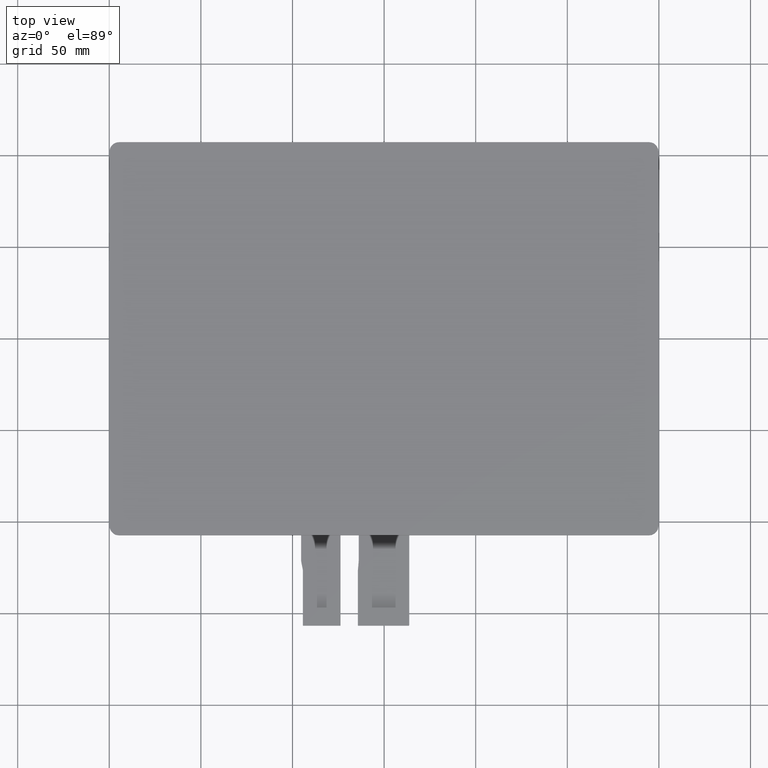
[diagram: clean part render]
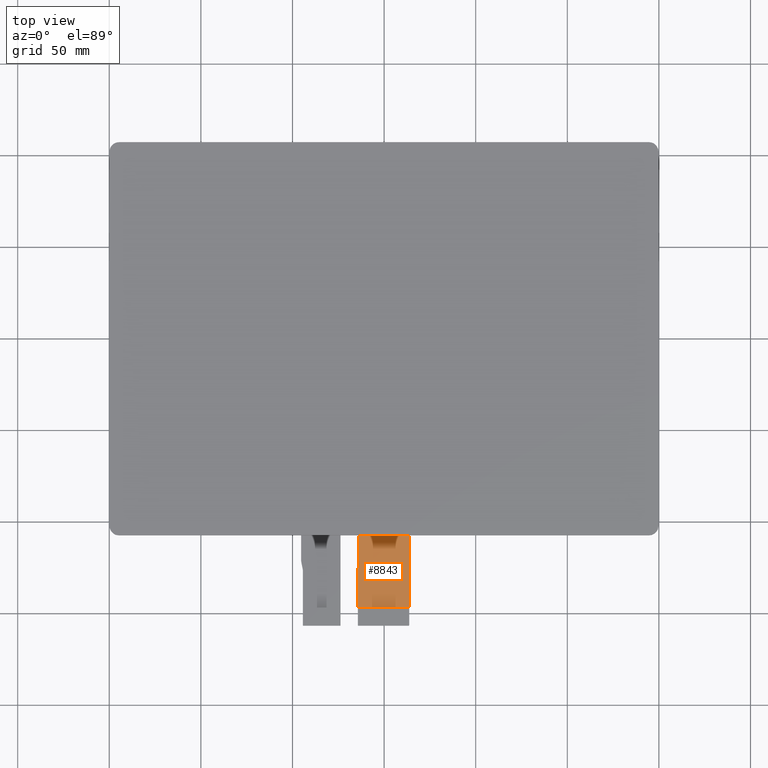
[diagram: same view with one face highlighted and labeled with its STEP entity id]
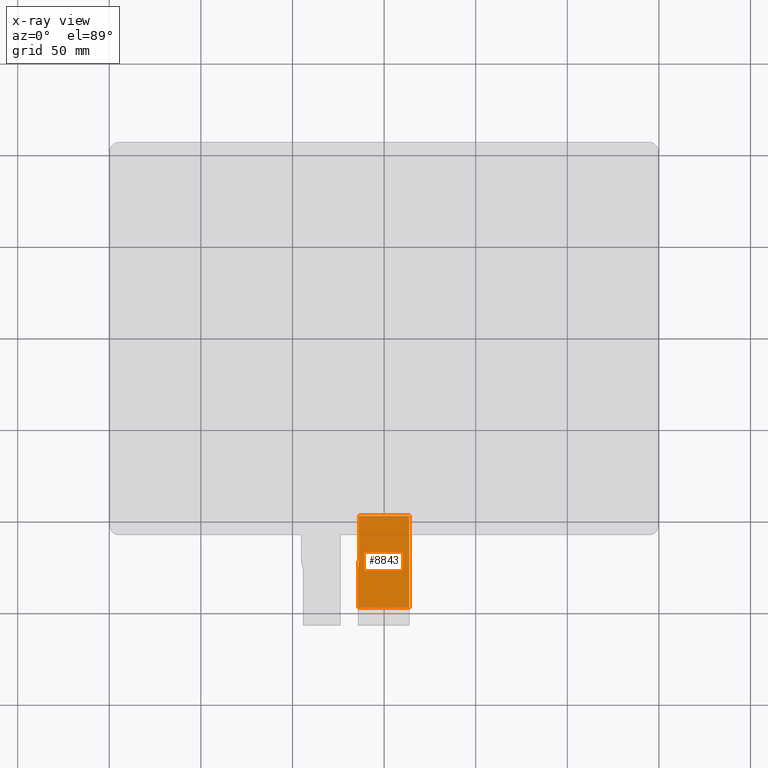
[diagram: x-ray of the same camera — body ghosted, the highlighted face saturated]
A machine part, top view. The second image highlights one B-rep face of the part: STEP entity #8843.
The next image is the same camera in x-ray: the body ghosted, the highlighted face saturated — about 0% of this face is hidden behind the body in this view.
In plain terms, the highlighted planar face has unit normal (0, 0, 1).
Its self-contained STEP definition (entity closure, byte-faithful):
#476=FACE_OUTER_BOUND('',#903,.T.);
#903=EDGE_LOOP('',(#7933,#7934,#7935,#7936,#7937,#7938));
#962=LINE('',#11542,#2207);
#2128=LINE('',#13875,#3373);
#2132=LINE('',#13882,#3377);
#2138=LINE('',#13896,#3383);
#2142=LINE('',#13903,#3387);
#2144=LINE('',#13906,#3389);
#2207=VECTOR('',#9411,10.);
#3373=VECTOR('',#11351,10.);
#3377=VECTOR('',#11359,10.);
#3383=VECTOR('',#11373,10.);
#3387=VECTOR('',#11379,10.);
#3389=VECTOR('',#11383,10.);
#3449=VERTEX_POINT('',#11539);
#3450=VERTEX_POINT('',#11541);
#4229=VERTEX_POINT('',#13872);
#4230=VERTEX_POINT('',#13874);
#4234=VERTEX_POINT('',#13894);
#4235=VERTEX_POINT('',#13895);
#4300=EDGE_CURVE('',#3450,#3449,#962,.T.);
#5466=EDGE_CURVE('',#4230,#4229,#2128,.T.);
#5470=EDGE_CURVE('',#4229,#3450,#2132,.T.);
#5476=EDGE_CURVE('',#4234,#4235,#2138,.T.);
#5480=EDGE_CURVE('',#4235,#4230,#2142,.T.);
#5482=EDGE_CURVE('',#4234,#3449,#2144,.T.);
#7933=ORIENTED_EDGE('',*,*,#5470,.T.);
#7934=ORIENTED_EDGE('',*,*,#4300,.T.);
#7935=ORIENTED_EDGE('',*,*,#5482,.F.);
#7936=ORIENTED_EDGE('',*,*,#5476,.T.);
#7937=ORIENTED_EDGE('',*,*,#5480,.T.);
#7938=ORIENTED_EDGE('',*,*,#5466,.T.);
#8418=PLANE('',#9300);
#8843=ADVANCED_FACE('',(#476),#8418,.T.);
#9300=AXIS2_PLACEMENT_3D('',#13905,#11381,#11382);
#9411=DIRECTION('',(-2.96059473233375E-16,1.,0.));
#11351=DIRECTION('',(4.4114822170536E-16,-1.,0.));
#11359=DIRECTION('',(1.,0.,0.));
#11373=DIRECTION('',(1.85037170770859E-16,-1.,0.));
#11379=DIRECTION('',(-0.0858883421530125,-0.996304768974939,0.));
#11381=DIRECTION('center_axis',(0.,0.,1.));
#11382=DIRECTION('ref_axis',(1.,0.,0.));
#11383=DIRECTION('',(1.,1.909376753207E-16,0.));
#11539=CARTESIAN_POINT('',(13.7,-96.7,-1.25));
#11541=CARTESIAN_POINT('',(13.7,-146.7,-1.25));
#11542=CARTESIAN_POINT('',(13.7,-156.7,-1.25));
#13872=CARTESIAN_POINT('',(-14.3,-146.7,-1.25));
#13874=CARTESIAN_POINT('',(-14.3,-126.5,-1.25));
#13875=CARTESIAN_POINT('',(-14.3,-126.5,-1.25));
#13882=CARTESIAN_POINT('',(6.70000000000002,-146.7,-1.25));
#13894=CARTESIAN_POINT('',(-13.8,-96.7,-1.25));
#13895=CARTESIAN_POINT('',(-13.8,-120.7,-1.25));
#13896=CARTESIAN_POINT('',(-13.8,-96.7,-1.25));
#13903=CARTESIAN_POINT('',(-13.8,-120.7,-1.25));
#13905=CARTESIAN_POINT('Origin',(-0.299999999999985,-126.7,-1.25));
#13906=CARTESIAN_POINT('',(69.1,-96.7,-1.25));